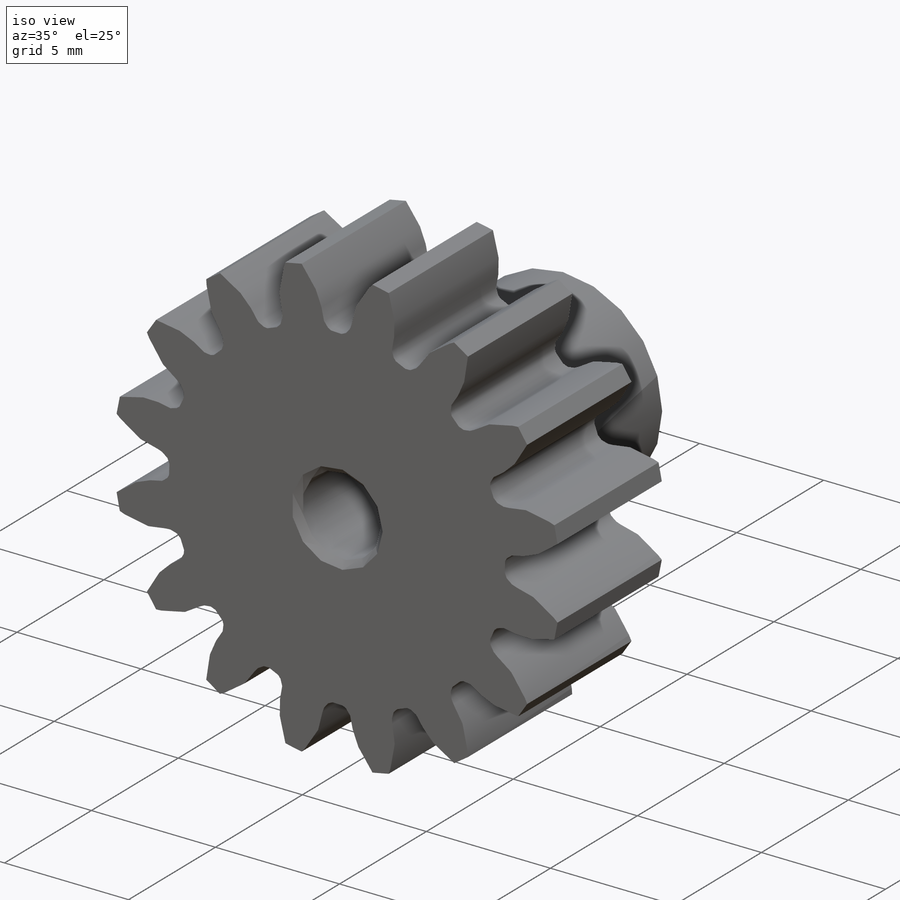
[diagram: iso view]
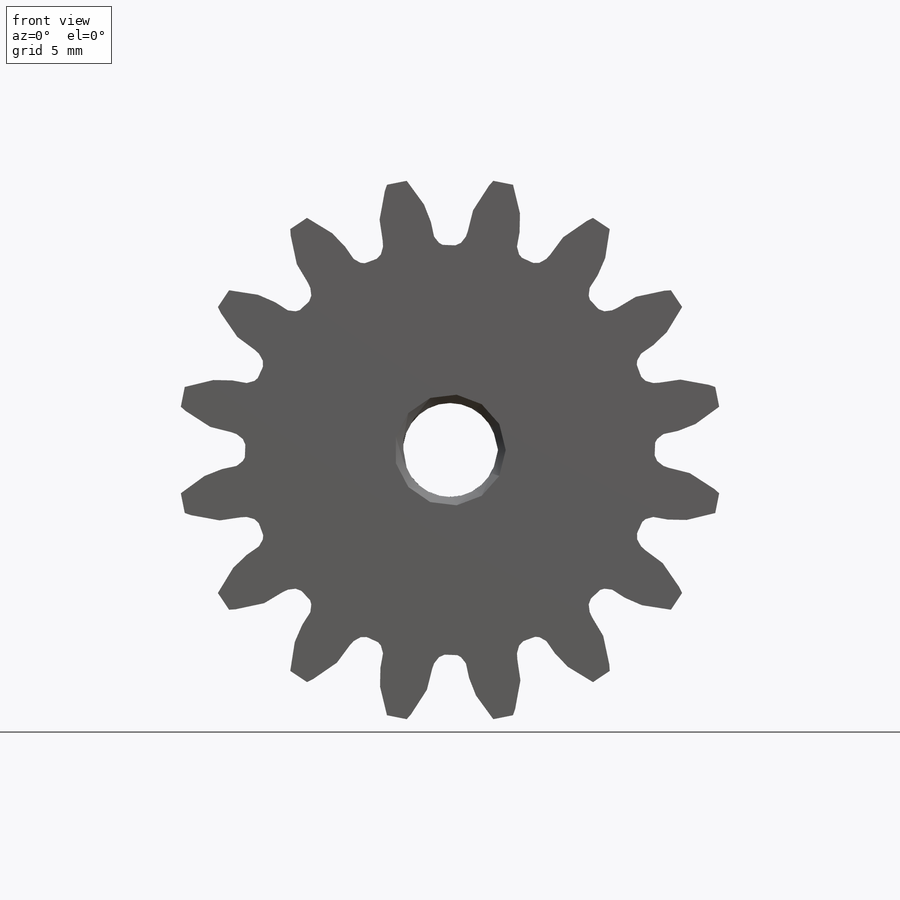
[diagram: front view]
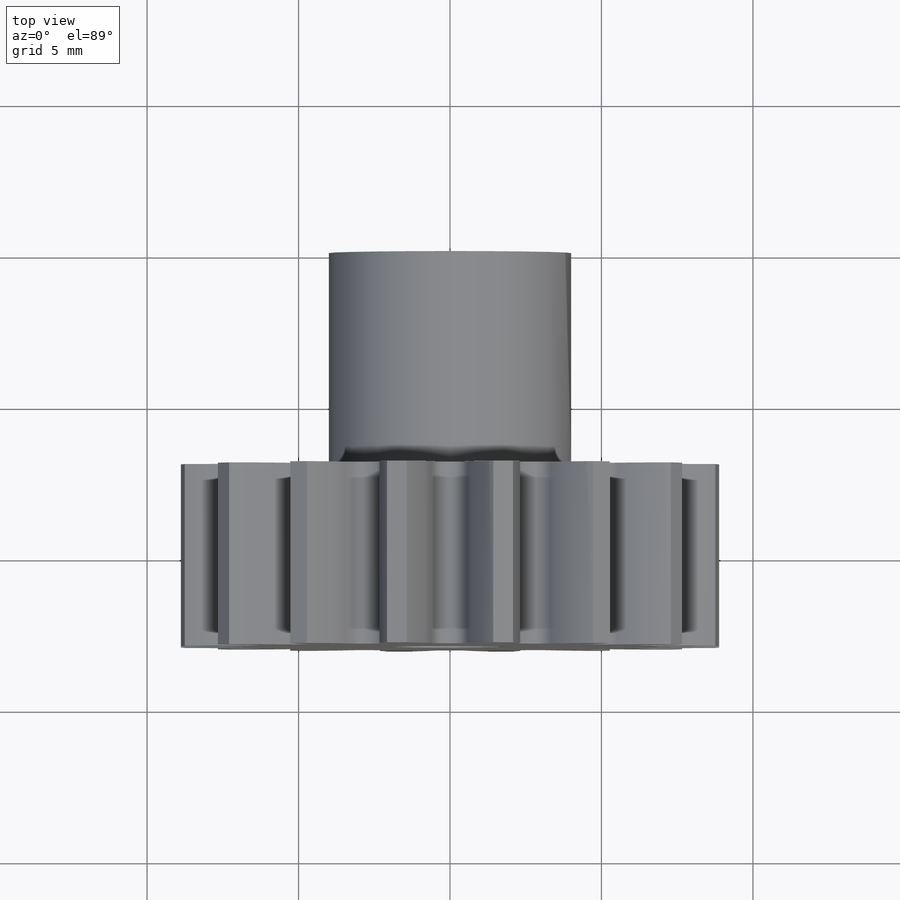
[diagram: top view]
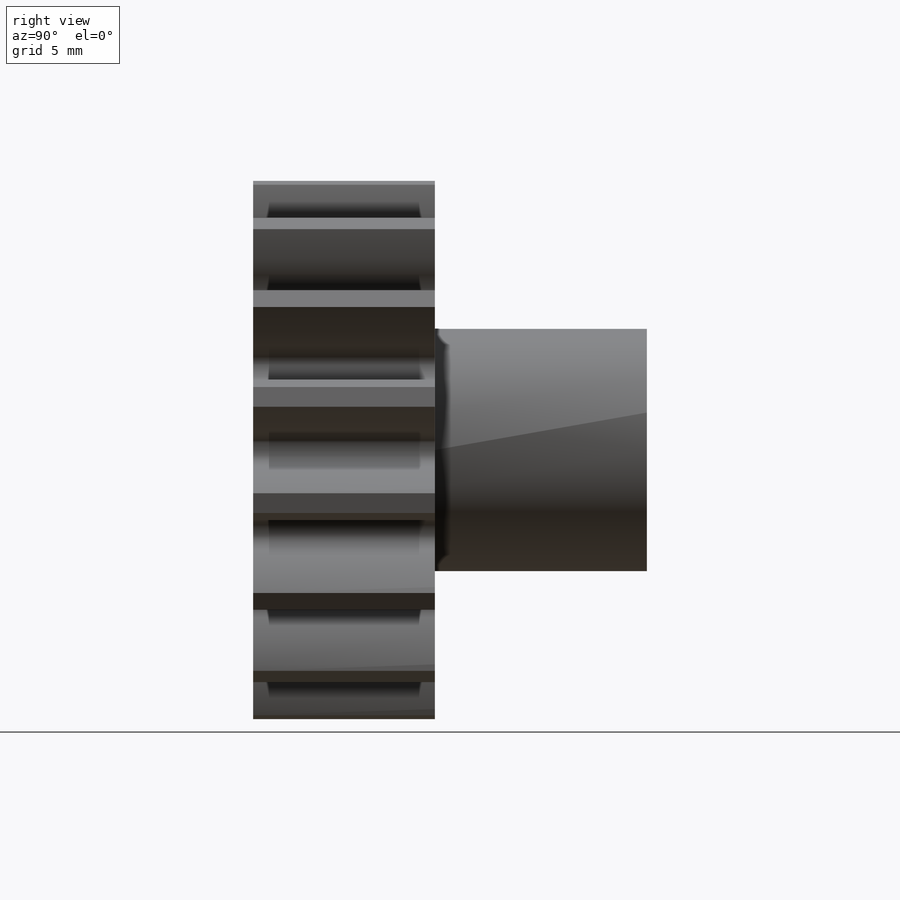
[diagram: right view]
SOLIDWORKS PART (.sldprt)
format: sldprt  version: not decoded by parser v0  size: 307,712 bytes
history: native  units: mm
features: sketch x5, plane x4, revolve x2, material x1, cut_extrude x1, pattern_circular x1, cut_revolve x1 + 1 further entry (+10 scaffold rows collapsed)
feature tree (26):
  scaffold x10  (default folders/planes/origin — collapsed)
  material  "Plain Carbon Steel"
  plane  "Спереди"
  plane  "Сверху"
  plane  "Справа"
  sketch  "SketchRevolveSpur01"
  revolve  "Spur01"  Angle=360deg
  sketch  "SketchToothSpur01"
  cut_extrude  "ToothExtrudeCutSpur01"  Depth=3mm
  "Axis2"
  plane  "Plane1"
  pattern_circular  "PatternSpur01"  Count=16 Angle=22.5deg
  sketch  "HubSketchSide1"  dims[HubRadius1=4.0mm]
  revolve  "HubRevolve1"  Angle=360deg
  sketch  "BoreRevolveSketch"  dims[TaperSide1=1.839mm Chamfer1X=0.254mm Chamfer1Y=0.254mm TaperSide2=1.839mm]
  cut_revolve  "BoreRevolveCut"  Angle=360deg
  sketch  "AuxiliarySketchSpur01"  dims[PitchDiameter=16.0mm BaseDiameter=~15.035082mm FormDiameter=~15.050583mm MajorDiameter=18.0mm MinorDiameter=13.5mm]
decode coverage: 8 of 10 modeling features carry decoded parameters; 1 rows unclassified (native names shown)
note: ~ marks probable driven/reference dimensions
note: suppression state not decoded; provenance and decode notes live in map.json
